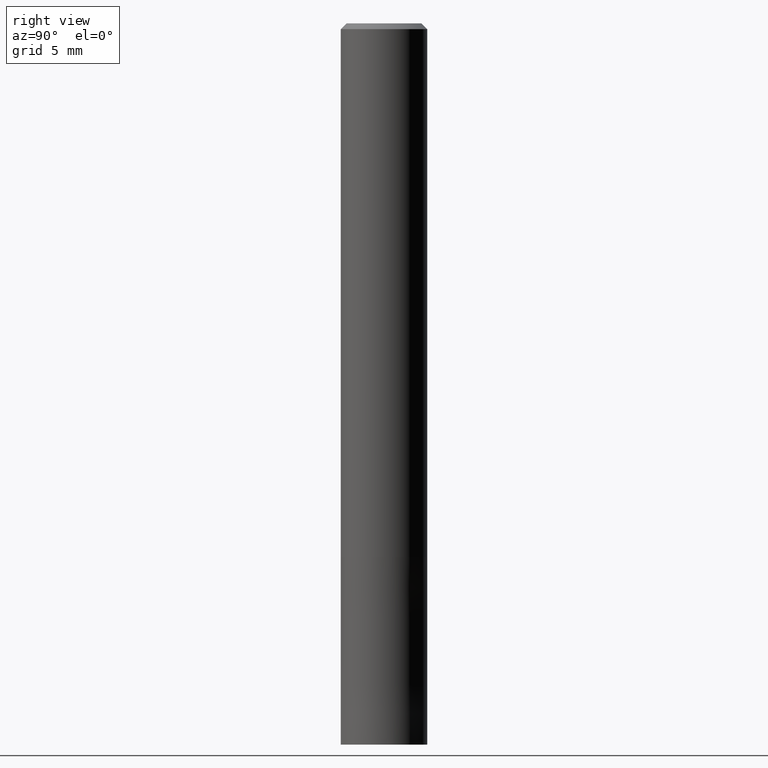
[diagram: clean part render]
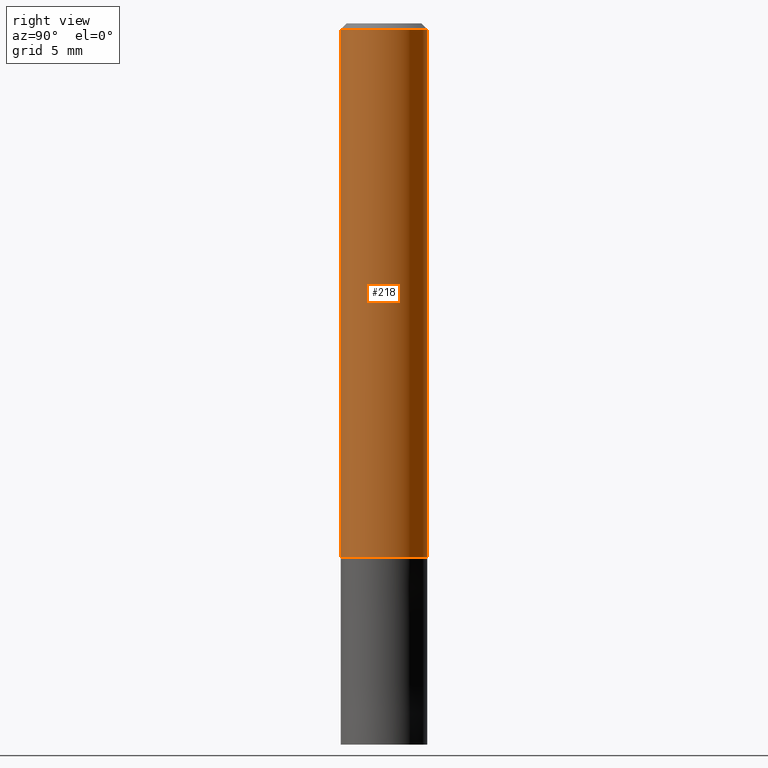
[diagram: same view with one face highlighted and labeled with its STEP entity id]
A machine part, right view. The second image highlights one B-rep face of the part: STEP entity #218.
In plain terms, the highlighted cylindrical surface (partial cylindrical patch) has radius 3 mm, axis along (-0, -0, 1).
Its self-contained STEP definition (entity closure, byte-faithful):
#96=VERTEX_POINT('',#241);
#102=VERTEX_POINT('',#247);
#110=EDGE_CURVE('',#120,#102,#258,.T.);
#120=VERTEX_POINT('',#269);
#134=VERTEX_POINT('',#283);
#136=EDGE_CURVE('',#96,#134,#285,.T.);
#188=EDGE_CURVE('',#134,#120,#346,.T.);
#210=EDGE_CURVE('',#96,#102,#371,.T.);
#218=ADVANCED_FACE('',(#380),#381,.T.);
#241=CARTESIAN_POINT('',(0.0,3.0,-0.399999999999999));
#247=CARTESIAN_POINT('',(3.67381906146713E-016,-3.0,-0.399999999999999));
#258=LINE('',#415,#416);
#269=CARTESIAN_POINT('',(3.67381906146713E-016,-3.0,-37.0));
#283=CARTESIAN_POINT('',(0.0,3.0,-37.0));
#285=LINE('',#453,#454);
#346=CIRCLE('',#527,3.0);
#371=CIRCLE('',#560,3.0);
#380=FACE_OUTER_BOUND('',#570,.T.);
#381=CYLINDRICAL_SURFACE('',#571,3.0);
#415=CARTESIAN_POINT('',(3.67381906146713E-016,-3.0,-18.7));
#416=VECTOR('',#595,1.0);
#453=CARTESIAN_POINT('',(-3.67381906146713E-016,3.0,-18.7));
#454=VECTOR('',#616,1.0);
#527=AXIS2_PLACEMENT_3D('',#698,#699,#700);
#560=AXIS2_PLACEMENT_3D('',#733,#734,#735);
#570=EDGE_LOOP('',(#748,#749,#750,#751));
#571=AXIS2_PLACEMENT_3D('',#752,#753,#754);
#595=DIRECTION('',(-0.0,-0.0,1.0));
#616=DIRECTION('',(0.0,0.0,-1.0));
#698=CARTESIAN_POINT('',(0.0,0.0,-37.0));
#699=DIRECTION('',(0.0,0.0,-1.0));
#700=DIRECTION('',(0.0,1.0,0.0));
#733=CARTESIAN_POINT('',(0.0,0.0,-0.399999999999999));
#734=DIRECTION('',(0.0,0.0,-1.0));
#735=DIRECTION('',(0.0,1.0,0.0));
#748=ORIENTED_EDGE('',*,*,#136,.F.);
#749=ORIENTED_EDGE('',*,*,#210,.T.);
#750=ORIENTED_EDGE('',*,*,#110,.F.);
#751=ORIENTED_EDGE('',*,*,#188,.F.);
#752=CARTESIAN_POINT('',(0.0,0.0,-18.7));
#753=DIRECTION('',(-0.0,-0.0,1.0));
#754=DIRECTION('',(0.0,1.0,0.0));